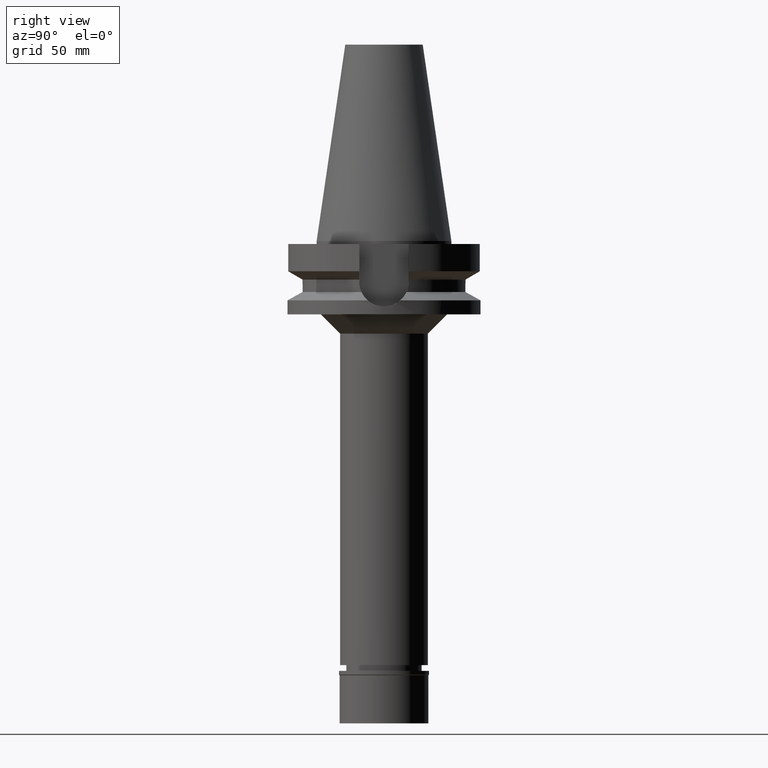
[diagram: clean part render]
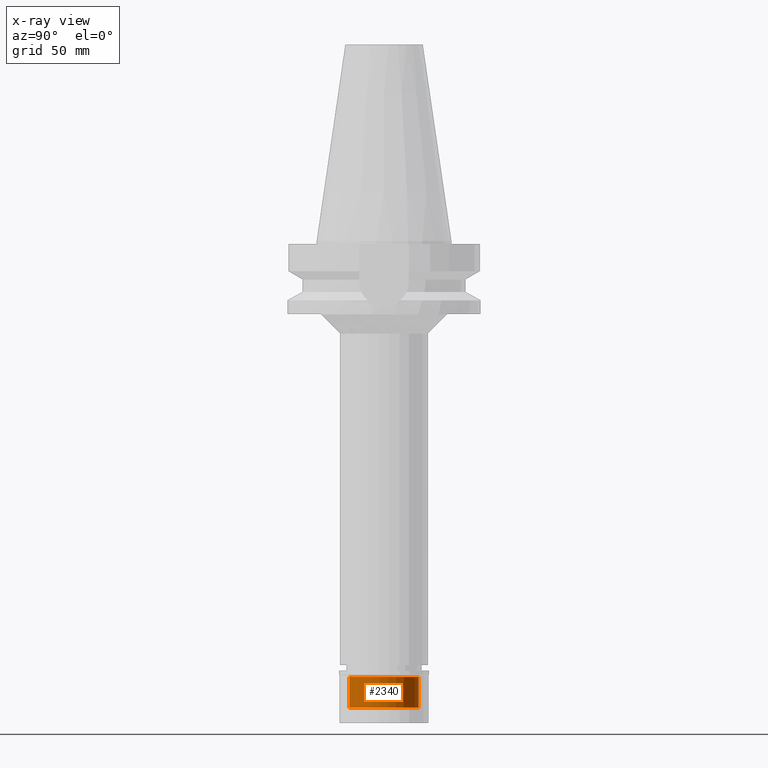
[diagram: x-ray — body ghosted, one internal face saturated and labeled with its STEP entity id]
A machine part, right view, then the same camera in x-ray: the body is ghosted and one INTERNAL B-rep face — a face not visible from any outside direction — is saturated and labeled: STEP entity #2340.
In plain terms, the highlighted cylindrical surface (edge-blend (fillet) strip) has radius 18 mm, axis along (0, 0, -1).
Its self-contained STEP definition (entity closure, byte-faithful):
#330 = ORIENTED_EDGE ( 'NONE', *, *, #897, .T. ) ;
#371 = EDGE_CURVE ( 'NONE', #1047, #2758, #2870, .T. ) ;
#505 = VERTEX_POINT ( 'NONE', #1360 ) ;
#551 = AXIS2_PLACEMENT_3D ( 'NONE', #1836, #2355, #2809 ) ;
#691 = DIRECTION ( 'NONE',  ( 0.0000000000000000000, 0.0000000000000000000, 1.000000000000000000 ) ) ;
#713 = CARTESIAN_POINT ( 'NONE',  ( 0.0000000000000000000, -18.00000000000000000, -19.00000000000000000 ) ) ;
#897 = EDGE_CURVE ( 'NONE', #505, #2758, #1787, .T. ) ;
#925 = EDGE_CURVE ( 'NONE', #1047, #1615, #1582, .T. ) ;
#949 = ORIENTED_EDGE ( 'NONE', *, *, #2063, .T. ) ;
#1047 = VERTEX_POINT ( 'NONE', #1859 ) ;
#1097 = FACE_OUTER_BOUND ( 'NONE', #2289, .T. ) ;
#1190 = ORIENTED_EDGE ( 'NONE', *, *, #925, .T. ) ;
#1223 = AXIS2_PLACEMENT_3D ( 'NONE', #2367, #2554, #3092 ) ;
#1360 = CARTESIAN_POINT ( 'NONE',  ( 0.0000000000000000000, -18.00000000000000000, -3.200000000000000178 ) ) ;
#1375 = VECTOR ( 'NONE', #1377, 1000.000000000000000 ) ;
#1377 = DIRECTION ( 'NONE',  ( 0.0000000000000000000, 0.0000000000000000000, 1.000000000000000000 ) ) ;
#1506 = CARTESIAN_POINT ( 'NONE',  ( 0.0000000000000000000, 18.00000000000000000, -3.200000000000000178 ) ) ;
#1582 = CIRCLE ( 'NONE', #551, 18.00000000000000000 ) ;
#1615 = VERTEX_POINT ( 'NONE', #2428 ) ;
#1787 = CIRCLE ( 'NONE', #1937, 18.00000000000000000 ) ;
#1836 = CARTESIAN_POINT ( 'NONE',  ( 0.0000000000000000000, 0.0000000000000000000, -19.00000000000000000 ) ) ;
#1859 = CARTESIAN_POINT ( 'NONE',  ( 0.0000000000000000000, 18.00000000000000000, -19.00000000000000000 ) ) ;
#1937 = AXIS2_PLACEMENT_3D ( 'NONE', #2081, #3051, #3097 ) ;
#2063 = EDGE_CURVE ( 'NONE', #1615, #505, #2649, .T. ) ;
#2081 = CARTESIAN_POINT ( 'NONE',  ( 0.0000000000000000000, 0.0000000000000000000, -3.200000000000000178 ) ) ;
#2246 = VECTOR ( 'NONE', #691, 1000.000000000000000 ) ;
#2289 = EDGE_LOOP ( 'NONE', ( #1190, #949, #330, #3142 ) ) ;
#2340 = ADVANCED_FACE ( 'NONE', ( #1097 ), #2807, .F. ) ;
#2355 = DIRECTION ( 'NONE',  ( 0.0000000000000000000, 0.0000000000000000000, -1.000000000000000000 ) ) ;
#2367 = CARTESIAN_POINT ( 'NONE',  ( 0.0000000000000000000, 0.0000000000000000000, 0.0000000000000000000 ) ) ;
#2428 = CARTESIAN_POINT ( 'NONE',  ( 0.0000000000000000000, -18.00000000000000000, -19.00000000000000000 ) ) ;
#2554 = DIRECTION ( 'NONE',  ( 0.0000000000000000000, 0.0000000000000000000, -1.000000000000000000 ) ) ;
#2649 = LINE ( 'NONE', #713, #2246 ) ;
#2758 = VERTEX_POINT ( 'NONE', #1506 ) ;
#2807 = CYLINDRICAL_SURFACE ( 'NONE', #1223, 18.00000000000000000 ) ;
#2809 = DIRECTION ( 'NONE',  ( 0.0000000000000000000, 1.000000000000000000, 0.0000000000000000000 ) ) ;
#2870 = LINE ( 'NONE', #3053, #1375 ) ;
#3051 = DIRECTION ( 'NONE',  ( 0.0000000000000000000, 0.0000000000000000000, 1.000000000000000000 ) ) ;
#3053 = CARTESIAN_POINT ( 'NONE',  ( 0.0000000000000000000, 18.00000000000000000, -19.00000000000000000 ) ) ;
#3092 = DIRECTION ( 'NONE',  ( 0.0000000000000000000, -1.000000000000000000, 0.0000000000000000000 ) ) ;
#3097 = DIRECTION ( 'NONE',  ( 0.0000000000000000000, -1.000000000000000000, 0.0000000000000000000 ) ) ;
#3142 = ORIENTED_EDGE ( 'NONE', *, *, #371, .F. ) ;